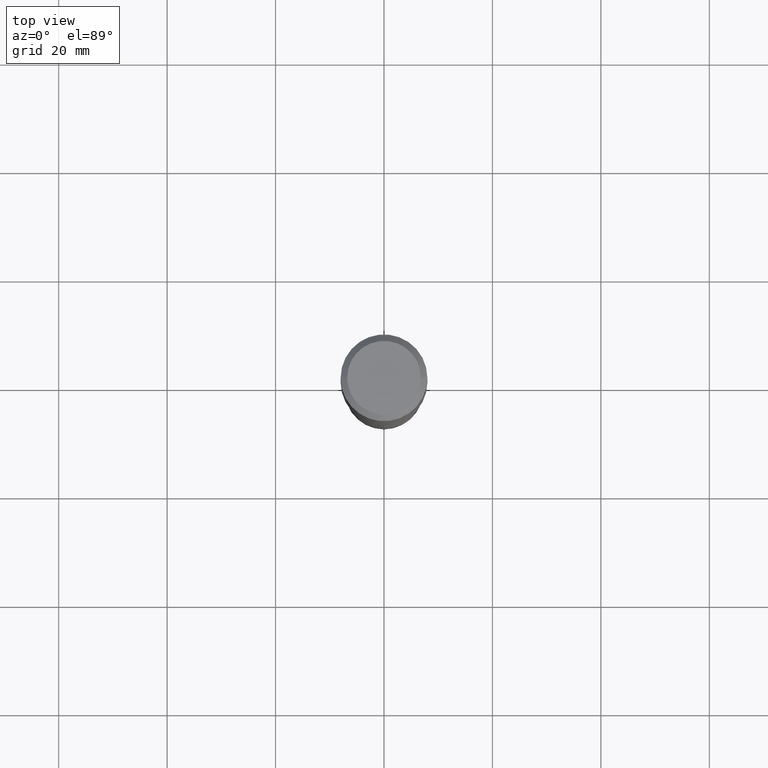
[diagram: clean part render]
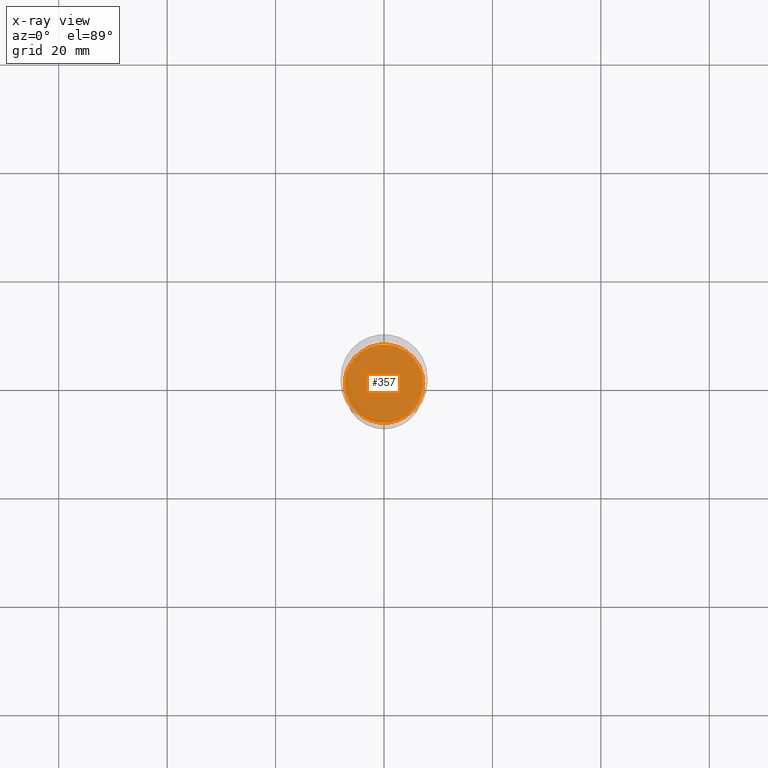
[diagram: x-ray — body ghosted, one internal face saturated and labeled with its STEP entity id]
A machine part, top view, then the same camera in x-ray: the body is ghosted and one INTERNAL B-rep face — a face not visible from any outside direction — is saturated and labeled: STEP entity #357.
In plain terms, the highlighted planar face has unit normal (-0, 0, 1).
Its self-contained STEP definition (entity closure, byte-faithful):
#3 = EDGE_CURVE ( 'NONE', #128, #392, #240, .T. ) ;
#6 = CIRCLE ( 'NONE', #317, 0.2849499999999999811 ) ;
#21 = AXIS2_PLACEMENT_3D ( 'NONE', #212, #404, #324 ) ;
#34 = DIRECTION ( 'NONE',  ( 1.000000000000000000, -6.982962677686263555E-15, 0.000000000000000000 ) ) ;
#101 = EDGE_CURVE ( 'NONE', #392, #128, #6, .T. ) ;
#128 = VERTEX_POINT ( 'NONE', #346 ) ;
#150 = CARTESIAN_POINT ( 'NONE',  ( 6.210023486426536087E-29, -8.866267711858284157E-15, -2.539400000000000102 ) ) ;
#162 = ORIENTED_EDGE ( 'NONE', *, *, #3, .F. ) ;
#212 = CARTESIAN_POINT ( 'NONE',  ( 6.210023486426536087E-29, -8.866267711858284157E-15, -2.539400000000000102 ) ) ;
#240 = CIRCLE ( 'NONE', #464, 0.2849499999999999811 ) ;
#262 = CARTESIAN_POINT ( 'NONE',  ( 0.2849499999999999811, -1.085606292686498571E-14, -2.539400000000000102 ) ) ;
#284 = ORIENTED_EDGE ( 'NONE', *, *, #101, .F. ) ;
#299 = DIRECTION ( 'NONE',  ( 1.000000000000000000, -6.982962677686263555E-15, 0.000000000000000000 ) ) ;
#317 = AXIS2_PLACEMENT_3D ( 'NONE', #150, #410, #299 ) ;
#324 = DIRECTION ( 'NONE',  ( 1.000000000000000000, -6.982962677686265922E-15, 4.876176775795935793E-29 ) ) ;
#327 = FACE_OUTER_BOUND ( 'NONE', #416, .T. ) ;
#346 = CARTESIAN_POINT ( 'NONE',  ( -0.2849499999999999811, -6.838926959135767216E-15, -2.539400000000000102 ) ) ;
#357 = ADVANCED_FACE ( 'NONE', ( #327 ), #402, .F. ) ;
#392 = VERTEX_POINT ( 'NONE', #262 ) ;
#402 = PLANE ( 'NONE',  #21 ) ;
#404 = DIRECTION ( 'NONE',  ( -2.438088387897960049E-29, 3.491481338843145188E-15, 1.000000000000000000 ) ) ;
#410 = DIRECTION ( 'NONE',  ( -2.445468806185136597E-29, 3.491481338843145583E-15, 1.000000000000000000 ) ) ;
#416 = EDGE_LOOP ( 'NONE', ( #284, #162 ) ) ;
#449 = CARTESIAN_POINT ( 'NONE',  ( 6.210023486426536087E-29, -8.866267711858284157E-15, -2.539400000000000102 ) ) ;
#452 = DIRECTION ( 'NONE',  ( -2.445468806185136597E-29, 3.491481338843145583E-15, 1.000000000000000000 ) ) ;
#464 = AXIS2_PLACEMENT_3D ( 'NONE', #449, #452, #34 ) ;